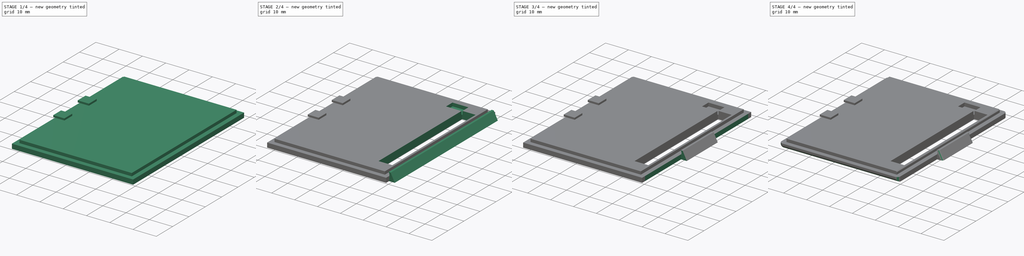
[diagram: build sequence overview — one tinted view per stage of 4, left to right]
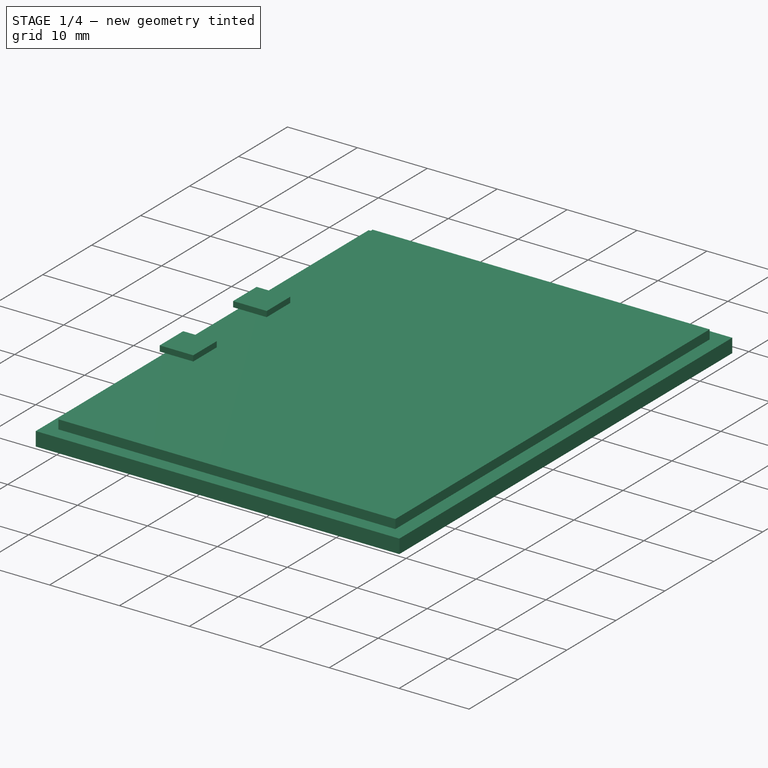
[diagram: stage 1 of 4 — iso view after this stage's code; geometry added in this stage tinted green]
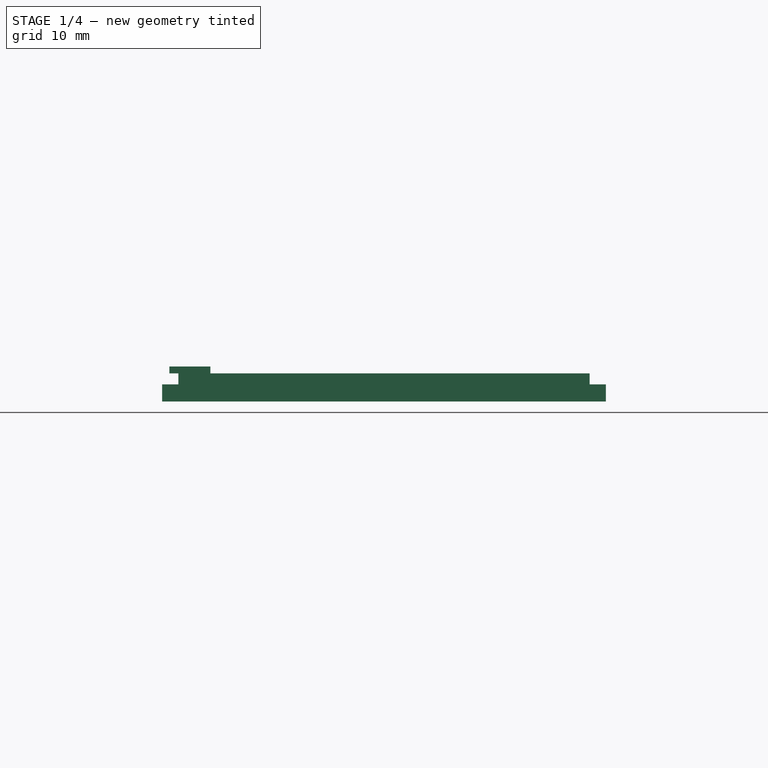
[diagram: stage 1 of 4 — front view after this stage's code; geometry added in this stage tinted green]
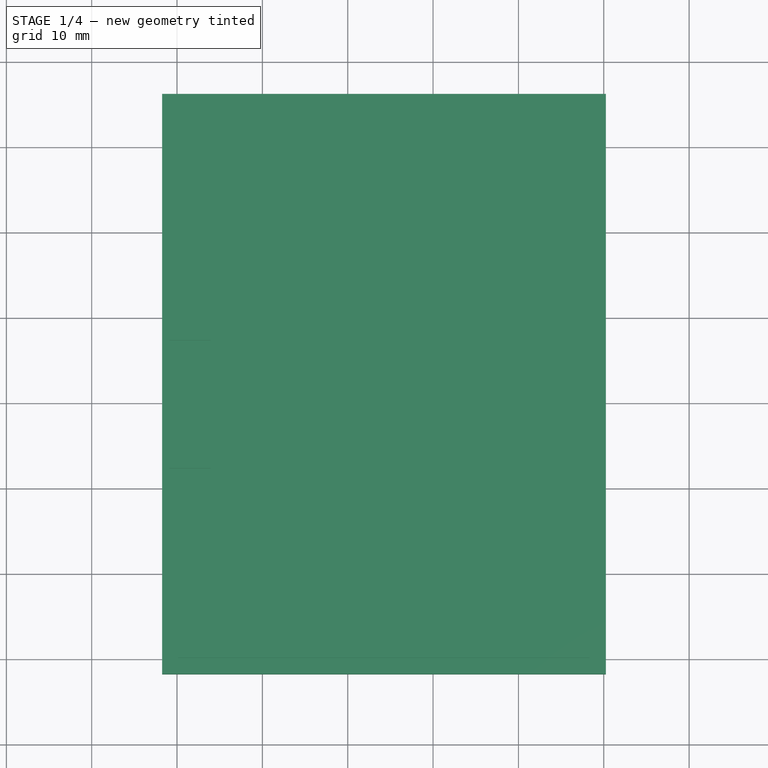
[diagram: stage 1 of 4 — top view after this stage's code; geometry added in this stage tinted green]
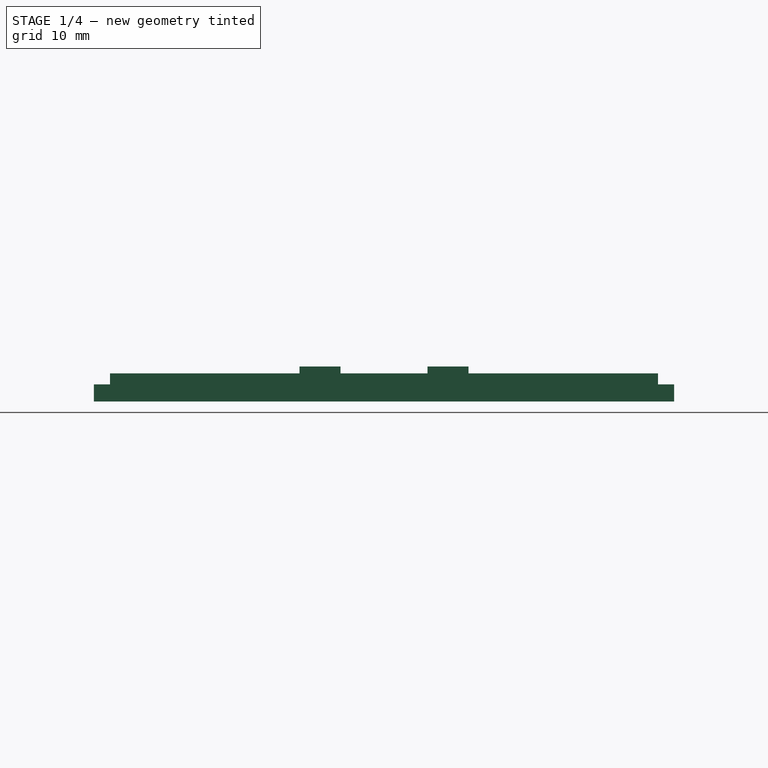
[diagram: stage 1 of 4 — right view after this stage's code; geometry added in this stage tinted green]
FCSTD DOCUMENT  (FreeCAD 0.18R4 (GitTag))
Label: coral_dev_mini_top
License: All rights reserved
LicenseURL: http://en.wikipedia.org/wiki/All_rights_reserved
objects: Sketcher::SketchObject×8, PartDesign::Pad×4, PartDesign::Pocket×4, PartDesign::Fillet×2, PartDesign::Chamfer×1, PartDesign::Body×1
note: 28 computed .brp shape members not serialized (recipe doc carries the construction recipe); baked Part::Feature solids carry a one-line shape summary decoded from their .brp

FEATURE [Sketcher::SketchObject] Sketch
  MapMode = 5
  Support = -> [XY_Plane]
  sketch-geometry (4):
    g0: LineSegment StartX=50.25 StartY=66.25 StartZ=0 EndX=-1.75 EndY=66.25 EndZ=0
    g1: LineSegment StartX=-1.75 StartY=66.25 StartZ=0 EndX=-1.75 EndY=-1.75 EndZ=0
    g2: LineSegment StartX=-1.75 StartY=-1.75 StartZ=0 EndX=50.25 EndY=-1.75 EndZ=0
    g3: LineSegment StartX=50.25 StartY=-1.75 StartZ=0 EndX=50.25 EndY=66.25 EndZ=0
  constraints (12):
    c: Coincident(g0,g1)
    c: Coincident(g1,g2)
    c: Coincident(g2,g3)
    c: Coincident(g3,g0)
    c: Horizontal(g0)
    c: Horizontal(g2)
    c: Vertical(g1)
    c: Vertical(g3)
    c: Distance(g0) = 52
    c: Distance(g3) = 68
    c: DistanceX(g1,g-1) = 1.75
    c: DistanceY(g1,g-1) = 1.75
FEATURE [PartDesign::Pad] Pad  label="top"
  Length = 2
  Length2 = 100
  Profile = -> Sketch
  Type = 0
FEATURE [Sketcher::SketchObject] Sketch001  label="inside_top"
  MapMode = 5
  Placement = pos=(0,0,2) rot=(0,0,1;0rad)
  Support = -> [Pad]
  sketch-geometry (4):
    g0: LineSegment StartX=0.15 StartY=0.15 StartZ=0 EndX=48.35 EndY=0.15 EndZ=0
    g1: LineSegment StartX=48.35 StartY=0.15 StartZ=0 EndX=48.35 EndY=64.35 EndZ=0
    g2: LineSegment StartX=48.35 StartY=64.35 StartZ=0 EndX=0.15 EndY=64.35 EndZ=0
    g3: LineSegment StartX=0.15 StartY=64.35 StartZ=0 EndX=0.15 EndY=0.15 EndZ=0
  constraints (12):
    c: Coincident(g0,g1)
    c: Coincident(g1,g2)
    c: Coincident(g2,g3)
    c: Coincident(g3,g0)
    c: Horizontal(g0)
    c: Horizontal(g2)
    c: Vertical(g1)
    c: Vertical(g3)
    c: Distance(g2) = 48.2
    c: Distance(g1) = 64.2
    c: DistanceX(g-1,g0) = 0.15
    c: DistanceY(g-1,g0) = 0.15
FEATURE [PartDesign::Pad] Pad001  label="wedge"
  BaseFeature = -> Pad
  Length = 1.3
  Length2 = 100
  Profile = -> Sketch001
  Type = 0
FEATURE [Sketcher::SketchObject] Sketch002
  MapMode = 5
  Placement = pos=(0,0,3.3) rot=(0,0,1;0rad)
  Support = -> [Pad001]
  sketch-geometry (8):
    g0: LineSegment StartX=3.9 StartY=27.15 StartZ=0 EndX=-0.9 EndY=27.15 EndZ=0
    g1: LineSegment StartX=-0.9 StartY=27.15 StartZ=0 EndX=-0.9 EndY=22.35 EndZ=0
    g2: LineSegment StartX=-0.9 StartY=22.35 StartZ=0 EndX=3.9 EndY=22.35 EndZ=0
    g3: LineSegment StartX=3.9 StartY=22.35 StartZ=0 EndX=3.9 EndY=27.15 EndZ=0
    g4: LineSegment StartX=3.9 StartY=42.15 StartZ=0 EndX=-0.9 EndY=42.15 EndZ=0
    g5: LineSegment StartX=-0.9 StartY=42.15 StartZ=0 EndX=-0.9 EndY=37.35 EndZ=0
    g6: LineSegment StartX=-0.9 StartY=37.35 StartZ=0 EndX=3.9 EndY=37.35 EndZ=0
    g7: LineSegment StartX=3.9 StartY=37.35 StartZ=0 EndX=3.9 EndY=42.15 EndZ=0
  constraints (24):
    c: Coincident(g0,g1)
    c: Coincident(g1,g2)
    c: Coincident(g2,g3)
    c: Coincident(g3,g0)
    c: Horizontal(g0)
    c: Horizontal(g2)
    c: Vertical(g1)
    c: Vertical(g3)
    c: Distance(g0) = 4.8
    c: Distance(g3) = 4.8
    c: DistanceY(g-1,g1) = 22.35
    c: DistanceX(g-1,g1) = -0.9
    c: Coincident(g4,g5)
    c: Coincident(g5,g6)
    c: Coincident(g6,g7)
    c: Coincident(g7,g4)
    c: Horizontal(g4)
    c: Horizontal(g6)
    c: Vertical(g5)
    c: Vertical(g7)
    c: Equal(g0,g4) = 4
    c: Equal(g3,g7) = 4.8
    c: DistanceY(g0,g6) = 10.2
    c: DistanceX(g0,g5) = 0
FEATURE [PartDesign::Pad] Pad002  label="top_inserts"
  BaseFeature = -> Pad001
  Length = 0.8
  Length2 = 100
  Profile = -> Sketch002
  Type = 0
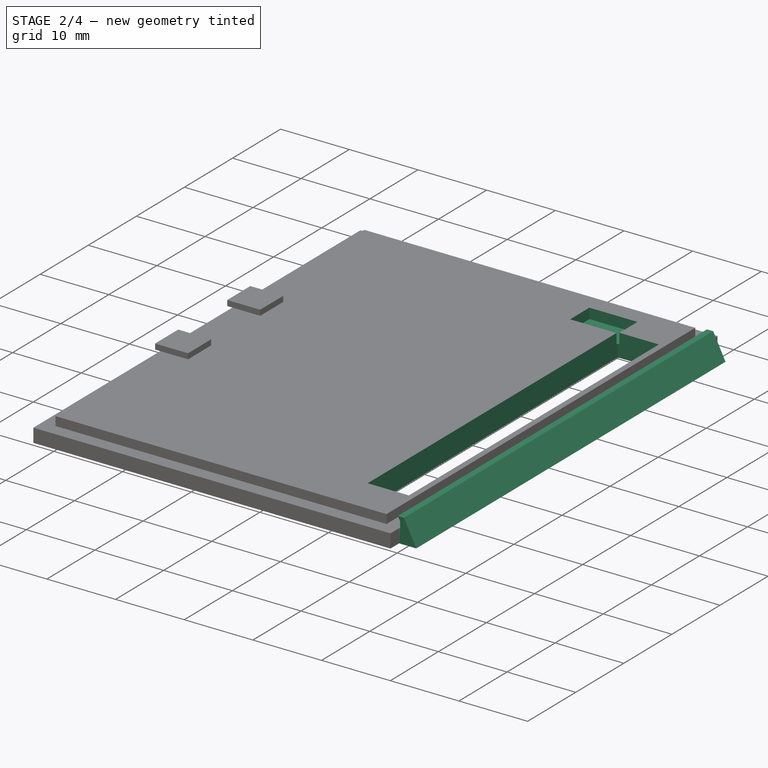
[diagram: stage 2 of 4 — iso view after this stage's code; geometry added in this stage tinted green]
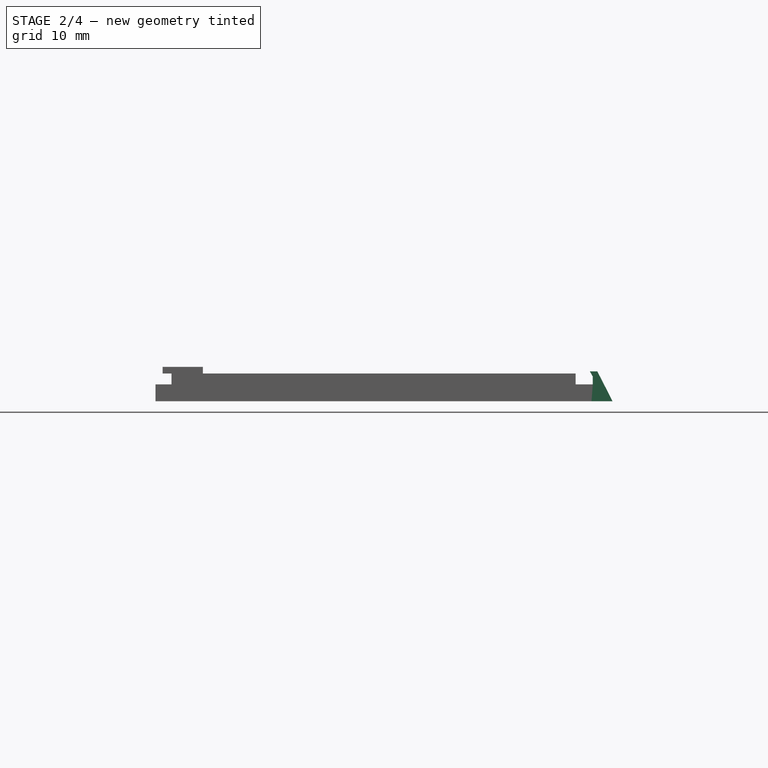
[diagram: stage 2 of 4 — front view after this stage's code; geometry added in this stage tinted green]
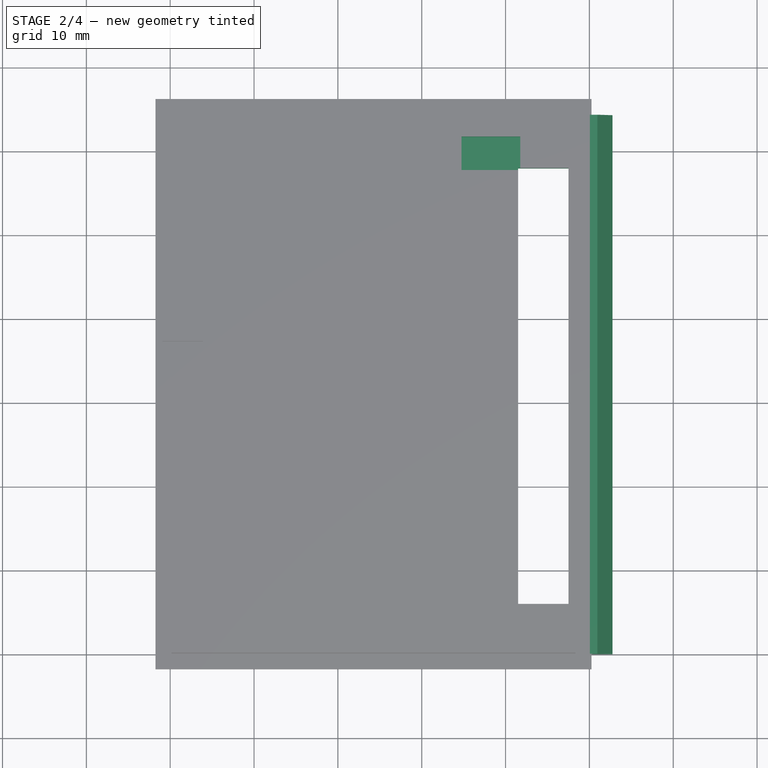
[diagram: stage 2 of 4 — top view after this stage's code; geometry added in this stage tinted green]
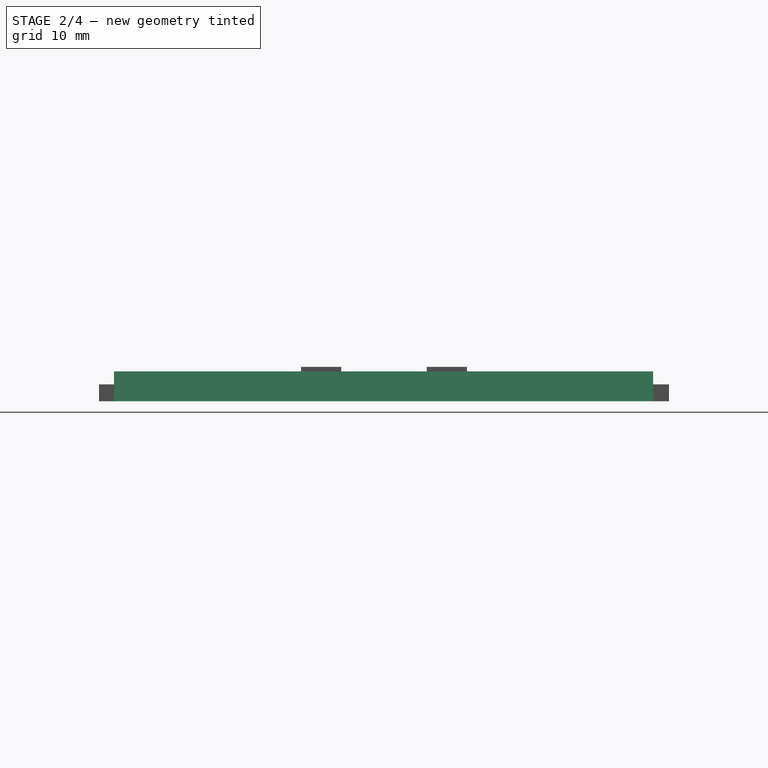
[diagram: stage 2 of 4 — right view after this stage's code; geometry added in this stage tinted green]
FEATURE [Sketcher::SketchObject] Sketch003
  MapMode = 5
  Placement = pos=(0,64.35,0) rot=(0,0.707107,0.707107;3.14159rad)
  Support = -> [Pad002]
  sketch-geometry (7):
    g0: LineSegment StartX=-50.25 StartY=0 StartZ=0 EndX=-52.75 EndY=0 EndZ=0
    g1: LineSegment StartX=-50.4 StartY=2.95 StartZ=0 EndX=-50.0536 EndY=3.55 EndZ=0
    g2: LineSegment StartX=-50.0536 StartY=3.55 StartZ=0 EndX=-50.9536 EndY=3.55 EndZ=0
    g3: LineSegment StartX=-50.9536 StartY=3.55 StartZ=0 EndX=-52.75 EndY=0 EndZ=0
    g4: LineSegment StartX=-50.4 StartY=2.95 StartZ=0 EndX=-50.4 EndY=2 EndZ=0
    g5: LineSegment StartX=-50.4 StartY=2 StartZ=0 EndX=-50.25 EndY=2 EndZ=0
    g6: LineSegment StartX=-50.25 StartY=2 StartZ=0 EndX=-50.25 EndY=0 EndZ=0
  constraints (21):
    c: Horizontal(g0)
    c: Coincident(g2,g1)
    c: Horizontal(g2)
    c: Coincident(g3,g2)
    c: Coincident(g3,g0)
    c: DistanceX(g0,g-1) = 50.25
    c: DistanceY(g-1,g0) = 0
    c: Distance(g0) = 2.5
    c: Coincident(g1,g4)
    c: Vertical(g4)
    c: Coincident(g4,g5)
    c: Horizontal(g5)
    c: Coincident(g5,g6)
    c: Coincident(g6,g0)
    c: Vertical(g6)
    c: Distance(g6) = 2
    c: DistanceY(g1,g1) = 0.6
    c: Angle(g4,g1) = 2.61799
    c: DistanceY(g0,g2) = 3.55
    c: Distance(g2) = 0.9
    c: DistanceX(g4,g0) = 0.15
FEATURE [PartDesign::Pad] Pad003  label="lid_latch"
  BaseFeature = -> Pad002
  Length = 64.3
  Length2 = 100
  Profile = -> Sketch003
  Reversed = true
  Type = 0
FEATURE [Sketcher::SketchObject] Sketch004  label="gpio"
  MapMode = 5
  Placement = pos=(0,0,0) rot=(1,0,0;3.14159rad)
  Support = -> [Pad003]
  sketch-geometry (4):
    g0: LineSegment StartX=41.5 StartY=-6 StartZ=0 EndX=47.5 EndY=-6 EndZ=0
    g1: LineSegment StartX=47.5 StartY=-6 StartZ=0 EndX=47.5 EndY=-58 EndZ=0
    g2: LineSegment StartX=47.5 StartY=-58 StartZ=0 EndX=41.5 EndY=-58 EndZ=0
    g3: LineSegment StartX=41.5 StartY=-58 StartZ=0 EndX=41.5 EndY=-6 EndZ=0
  constraints (12):
    c: Coincident(g0,g1)
    c: Coincident(g1,g2)
    c: Coincident(g2,g3)
    c: Coincident(g3,g0)
    c: Horizontal(g0)
    c: Horizontal(g2)
    c: Vertical(g1)
    c: Vertical(g3)
    c: DistanceY(g0,g-1) = 6
    c: Distance(g1) = 52
    c: Distance(g2) = 6
    c: DistanceX(g-1,g0) = 47.5
FEATURE [PartDesign::Pocket] Pocket  label="gpio_cutout"
  BaseFeature = -> Pad003
  Length = 5
  Length2 = 100
  Profile = -> Sketch004
  Type = 0
FEATURE [Sketcher::SketchObject] Sketch005  label="speaker_space"
  MapMode = 5
  Placement = pos=(0,0,3.3) rot=(0,0,1;0rad)
  Support = -> [Pocket]
  sketch-geometry (4):
    g0: LineSegment StartX=41.75 StartY=61.75 StartZ=0 EndX=34.75 EndY=61.75 EndZ=0
    g1: LineSegment StartX=34.75 StartY=61.75 StartZ=0 EndX=34.75 EndY=57.75 EndZ=0
    g2: LineSegment StartX=34.75 StartY=57.75 StartZ=0 EndX=41.75 EndY=57.75 EndZ=0
    g3: LineSegment StartX=41.75 StartY=57.75 StartZ=0 EndX=41.75 EndY=61.75 EndZ=0
  constraints (12):
    c: Coincident(g0,g1)
    c: Coincident(g1,g2)
    c: Coincident(g2,g3)
    c: Coincident(g3,g0)
    c: Horizontal(g0)
    c: Horizontal(g2)
    c: Vertical(g1)
    c: Vertical(g3)
    c: Distance(g0) = 7
    c: Distance(g3) = 4
    c: DistanceX(g-1,g2) = 41.75
    c: DistanceY(g-1,g1) = 57.75
FEATURE [PartDesign::Pocket] Pocket001  label="speaker_cutout"
  BaseFeature = -> Pocket
  Length = 1.5
  Length2 = 100
  Profile = -> Sketch005
  Type = 0
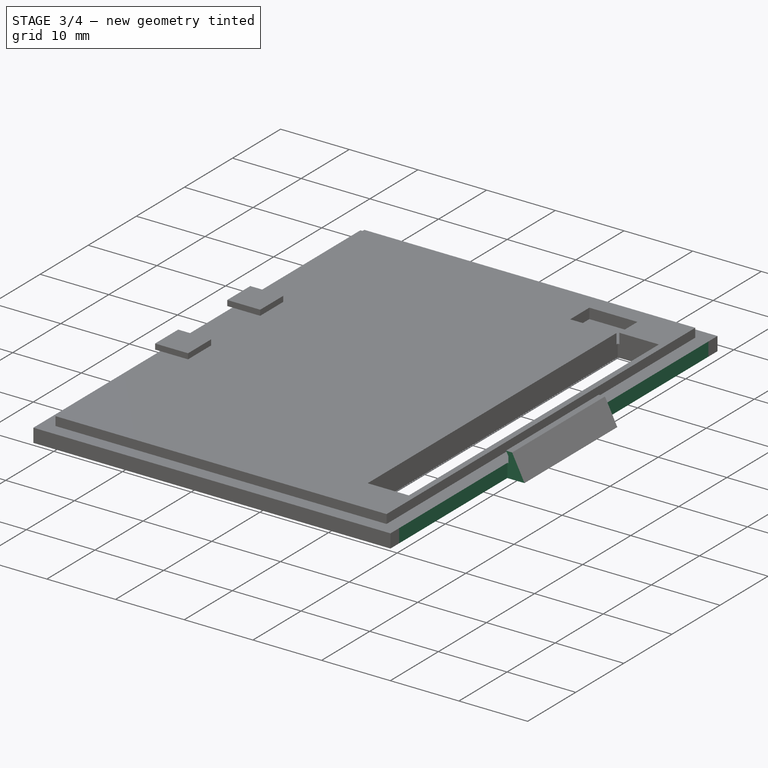
[diagram: stage 3 of 4 — iso view after this stage's code; geometry added in this stage tinted green]
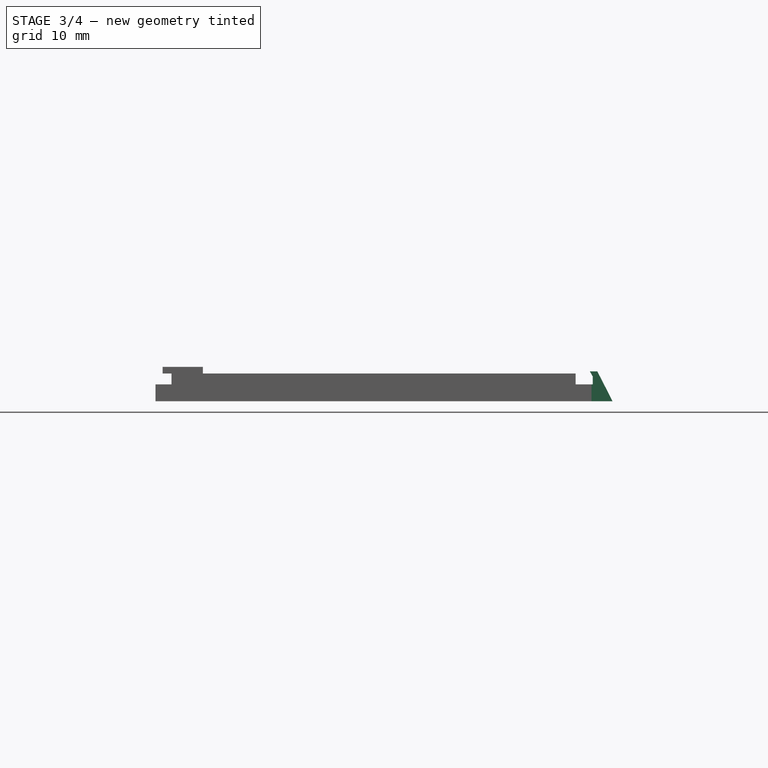
[diagram: stage 3 of 4 — front view after this stage's code; geometry added in this stage tinted green]
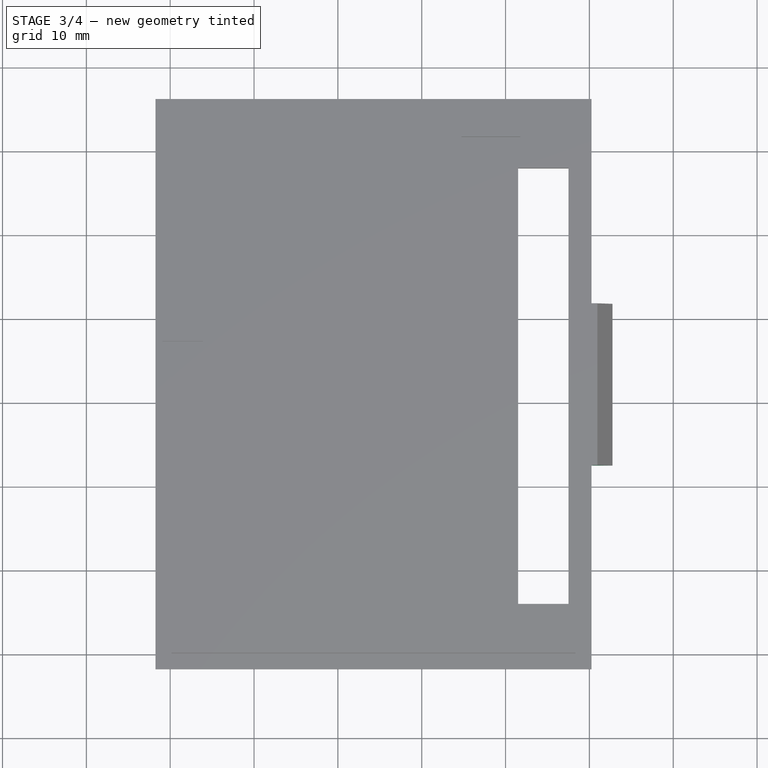
[diagram: stage 3 of 4 — top view after this stage's code; geometry added in this stage tinted green]
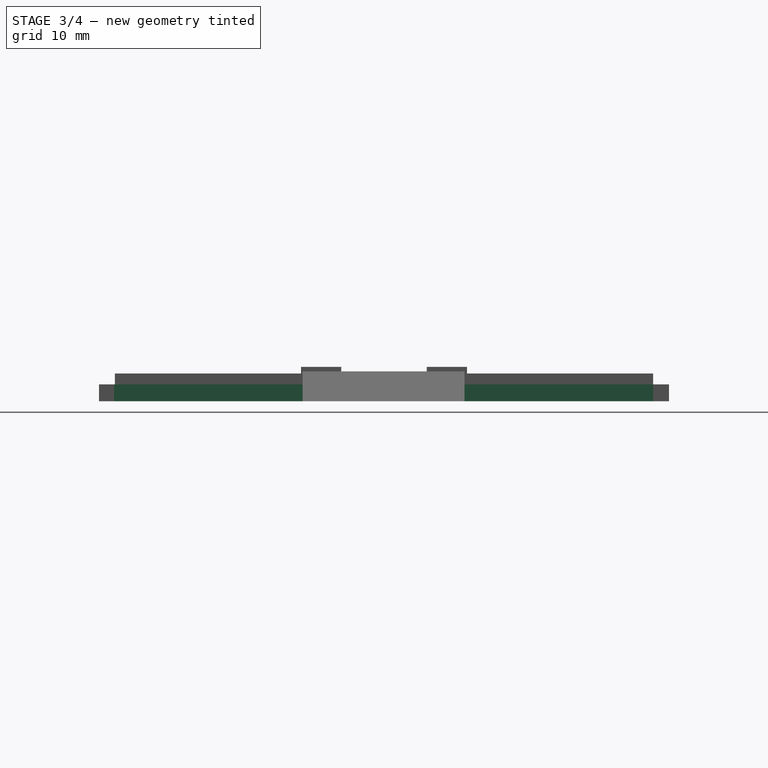
[diagram: stage 3 of 4 — right view after this stage's code; geometry added in this stage tinted green]
FEATURE [Sketcher::SketchObject] Sketch006  label="lid_latch_reduce_1"
  MapMode = 5
  Placement = pos=(0,64.35,0) rot=(0,0.707107,0.707107;3.14159rad)
  Support = -> [Pad003]
  sketch-geometry (6):
    g0: LineSegment StartX=-50.25 StartY=0 StartZ=0 EndX=-50.25 EndY=3 EndZ=0
    g1: LineSegment StartX=-50.25 StartY=3 StartZ=0 EndX=-49.75 EndY=3 EndZ=0
    g2: LineSegment StartX=-49.75 StartY=3 StartZ=0 EndX=-49.75 EndY=4.5 EndZ=0
    g3: LineSegment StartX=-49.75 StartY=4.5 StartZ=0 EndX=-53.25 EndY=4.5 EndZ=0
    g4: LineSegment StartX=-53.25 StartY=4.5 StartZ=0 EndX=-53.25 EndY=0 EndZ=0
    g5: LineSegment StartX=-53.25 StartY=0 StartZ=0 EndX=-50.25 EndY=0 EndZ=0
  constraints (18):
    c: Vertical(g0)
    c: Coincident(g0,g1)
    c: Horizontal(g1)
    c: Coincident(g1,g2)
    c: Vertical(g2)
    c: Coincident(g2,g3)
    c: Horizontal(g3)
    c: Coincident(g3,g4)
    c: Vertical(g4)
    c: Coincident(g4,g5)
    c: Coincident(g5,g0)
    c: Horizontal(g5)
    c: DistanceX(g0,g-1) = 50.25
    c: Distance(g5) = 3
    c: Distance(g4) = 4.5
    c: Distance(g3) = 3.5
    c: DistanceY(g-1,g0) = 0
    c: Distance(g2) = 1.5
FEATURE [PartDesign::Pocket] Pocket002  label="latch_reduction1"
  BaseFeature = -> Pocket001
  Length = 22.5
  Length2 = 100
  Profile = -> Sketch006
  Type = 0
FEATURE [Sketcher::SketchObject] Sketch007  label="lid_latch_reduce_2"
  MapMode = 5
  Placement = pos=(0,0.05,0) rot=(1,0,0;1.5708rad)
  Support = -> [Pocket002]
  sketch-geometry (6):
    g0: LineSegment StartX=50.25 StartY=0 StartZ=0 EndX=50.25 EndY=3 EndZ=0
    g1: LineSegment StartX=50.25 StartY=3 StartZ=0 EndX=49.75 EndY=3 EndZ=0
    g2: LineSegment StartX=49.75 StartY=3 StartZ=0 EndX=49.75 EndY=4.5 EndZ=0
    g3: LineSegment StartX=49.75 StartY=4.5 StartZ=0 EndX=53.25 EndY=4.5 EndZ=0
    g4: LineSegment StartX=53.25 StartY=4.5 StartZ=0 EndX=53.25 EndY=0 EndZ=0
    g5: LineSegment StartX=53.25 StartY=0 StartZ=0 EndX=50.25 EndY=0 EndZ=0
  constraints (18):
    c: Vertical(g0)
    c: Coincident(g0,g1)
    c: Horizontal(g1)
    c: Coincident(g1,g2)
    c: Vertical(g2)
    c: Coincident(g2,g3)
    c: Horizontal(g3)
    c: Coincident(g3,g4)
    c: Vertical(g4)
    c: Coincident(g4,g5)
    c: Coincident(g5,g0)
    c: Horizontal(g5)
    c: DistanceY(g0,g-1) = 0
    c: DistanceX(g-1,g0) = 50.25
    c: Distance(g4) = 4.5
    c: Distance(g5) = 3
    c: Distance(g3) = 3.5
    c: Distance(g2) = 1.5
FEATURE [PartDesign::Pocket] Pocket003  label="latch_reduction2"
  BaseFeature = -> Pocket002
  Length = 22.5
  Length2 = 100
  Profile = -> Sketch007
  Type = 0
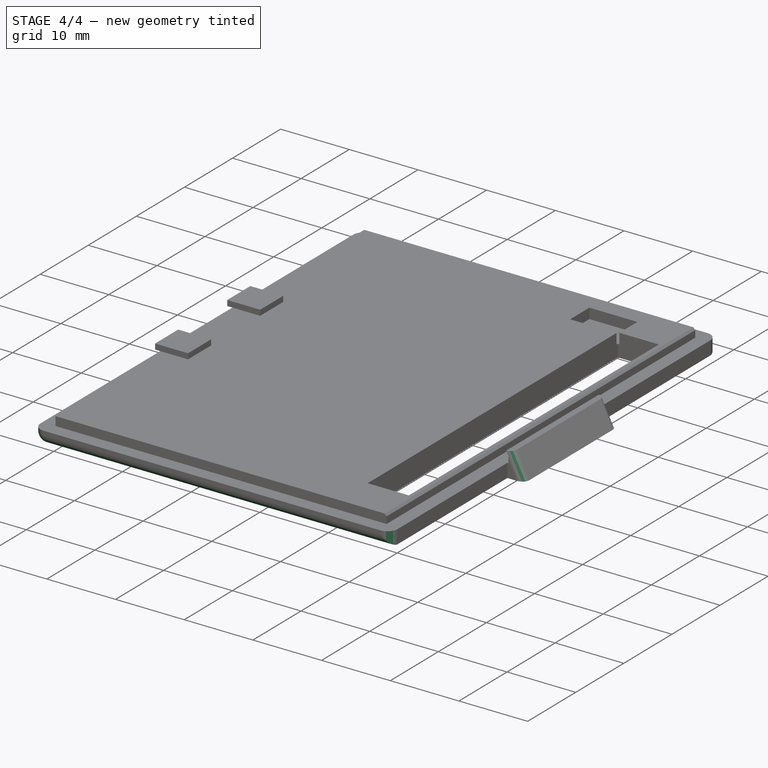
[diagram: stage 4 of 4 — iso view after this stage's code; geometry added in this stage tinted green]
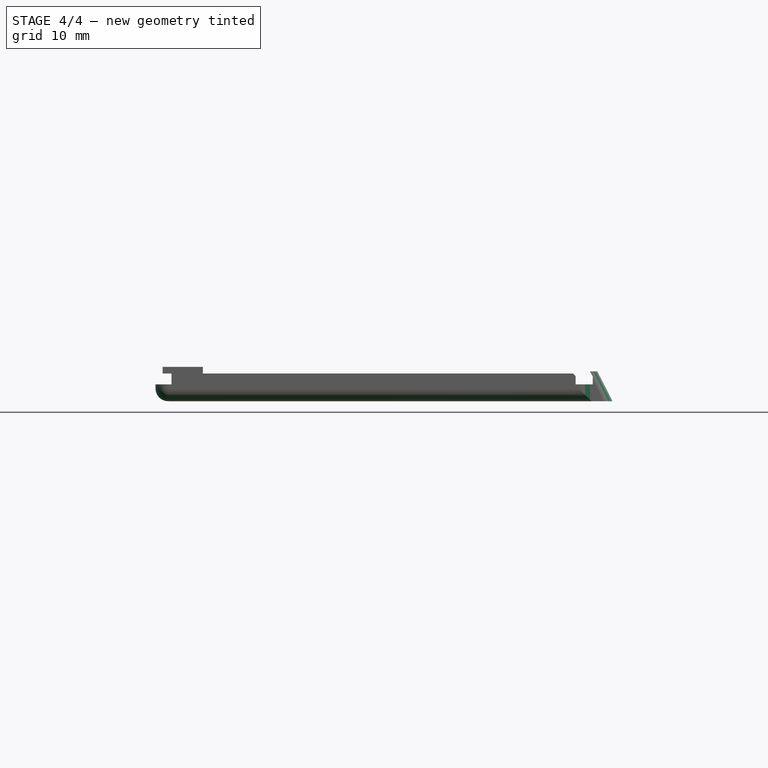
[diagram: stage 4 of 4 — front view after this stage's code; geometry added in this stage tinted green]
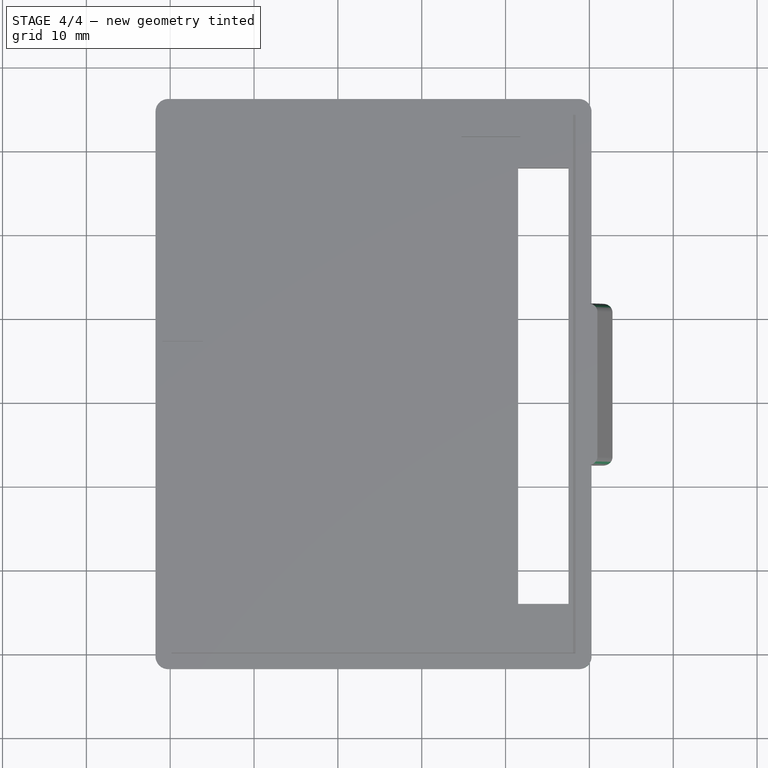
[diagram: stage 4 of 4 — top view after this stage's code; geometry added in this stage tinted green]
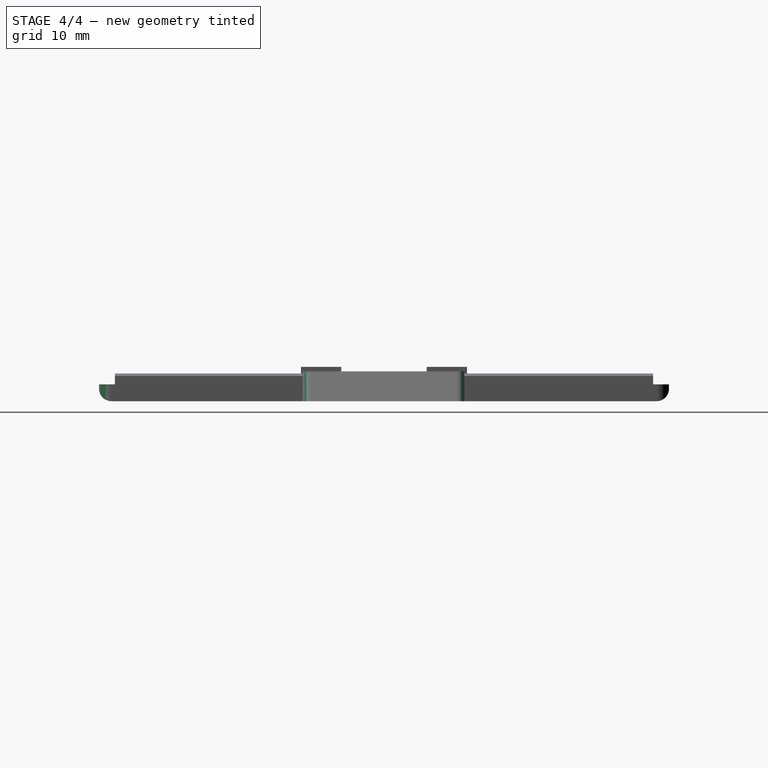
[diagram: stage 4 of 4 — right view after this stage's code; geometry added in this stage tinted green]
FEATURE [PartDesign::Fillet] Fillet
  Base = -> Pocket003 [Edge30,Edge14,Edge8,Edge9,Edge2,Edge3,Edge1]
  BaseFeature = -> Pocket003
  Radius = 1.5
FEATURE [PartDesign::Chamfer] Chamfer
  Base = -> Fillet [Edge49]
  BaseFeature = -> Fillet
  Size = 0.3
FEATURE [PartDesign::Fillet] Fillet001
  Base = -> Chamfer [Edge120,Edge127]
  BaseFeature = -> Chamfer
  Radius = 1
FEATURE [PartDesign::Body] Body
  Group = -> [Sketch,Pad,Sketch001,Pad001,Sketch002,Pad002,Sketch003,Pad003,Sketch004,Pocket,Sketch005,Pocket001,Sketch006,Pocket002,Sketch007,Pocket003,Fillet,Chamfer,Fillet001]
  Origin = -> Origin
  Tip = -> Fillet001
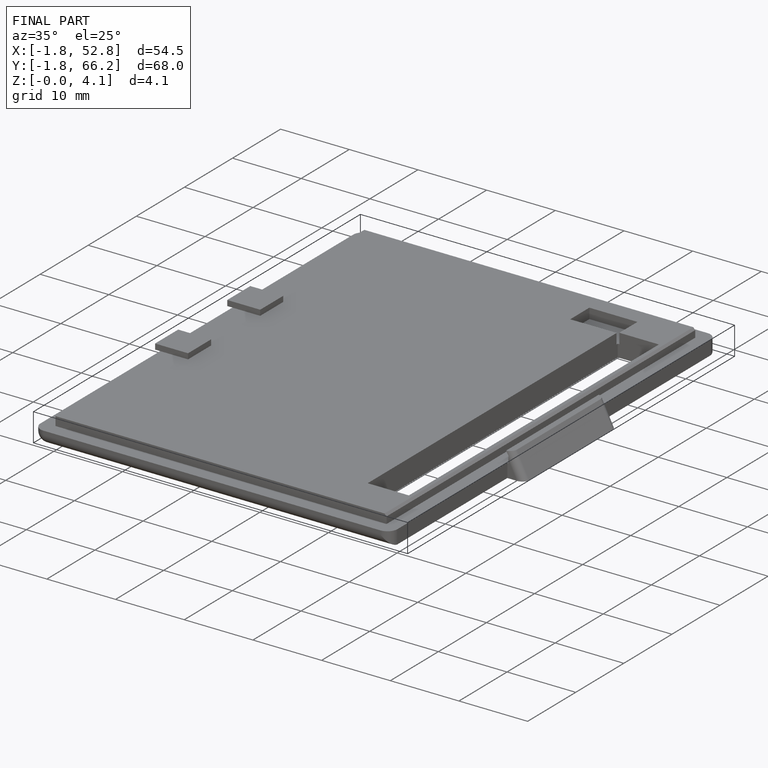
[diagram: finished part — iso view with bounding-box wireframe]
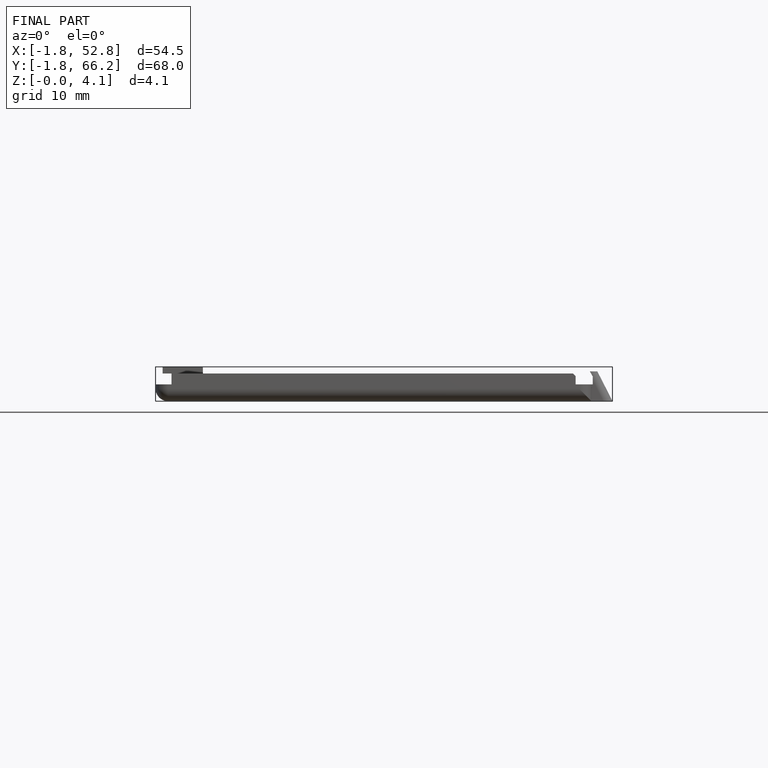
[diagram: finished part — front view with bounding-box wireframe]
